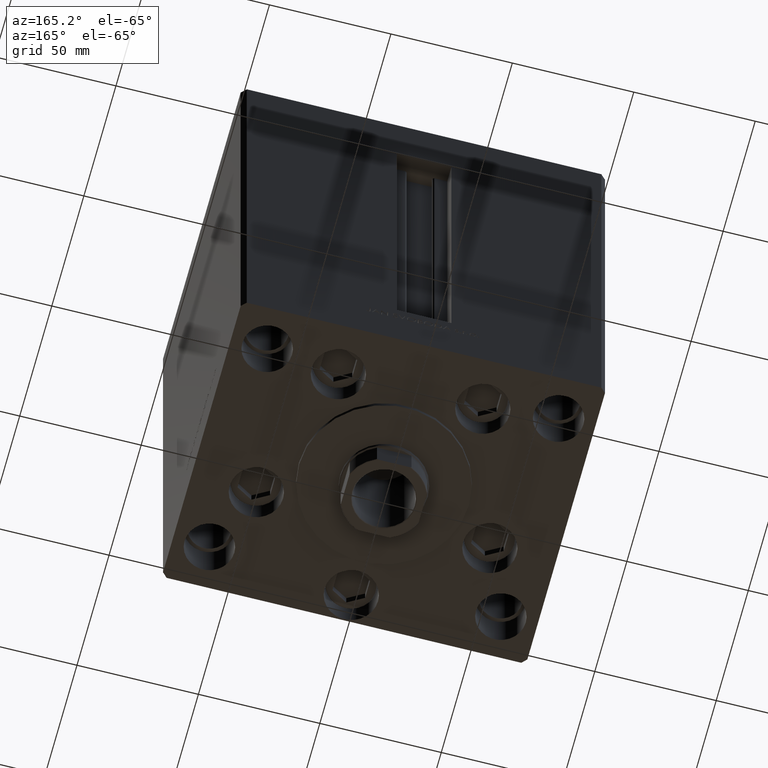
[diagram: clean part render]
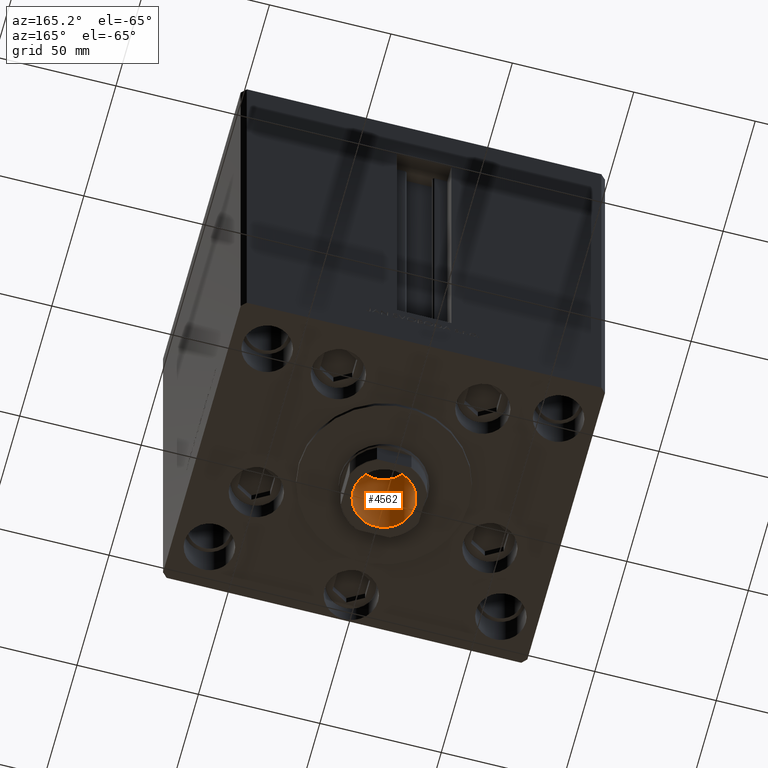
[diagram: same view with one face highlighted and labeled with its STEP entity id]
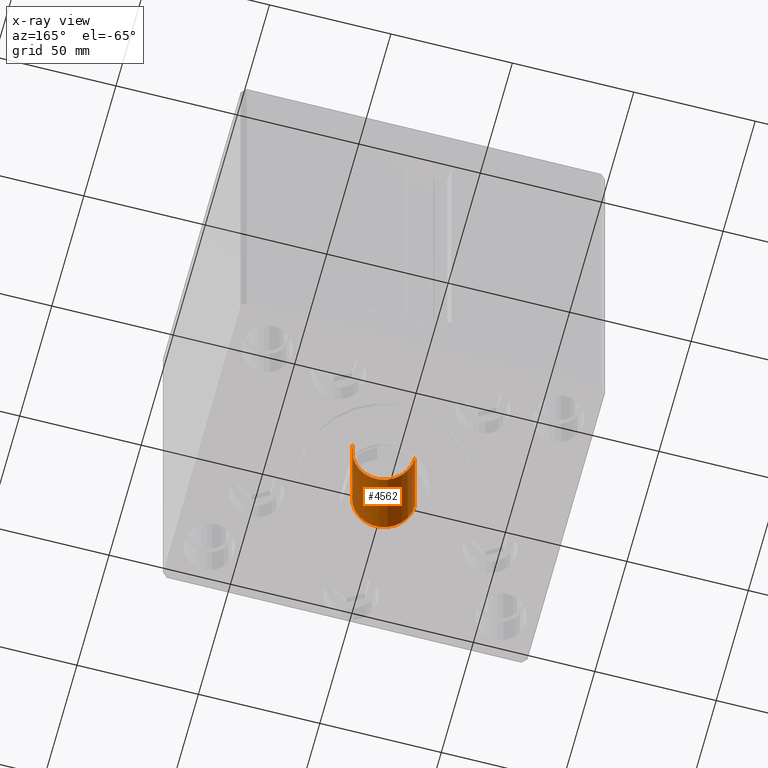
[diagram: x-ray of the same camera — body ghosted, the highlighted face saturated]
A machine part, auxiliary view. The second image highlights one B-rep face of the part: STEP entity #4562.
The next image is the same camera in x-ray: the body ghosted, the highlighted face saturated — about 8% of this face is hidden behind the body in this view.
In plain terms, the highlighted cylindrical surface (edge-blend (fillet) strip) has radius 12.75 mm, axis along (0, 0, -1).
Its self-contained STEP definition (entity closure, byte-faithful):
#626 = ORIENTED_EDGE ( 'NONE', *, *, #39612, .F. ) ;
#2459 = CARTESIAN_POINT ( 'NONE',  ( -12.74999999999999467, 1.561424668912874519E-15, 182.2000000000000171 ) ) ;
#2632 = ORIENTED_EDGE ( 'NONE', *, *, #12666, .F. ) ;
#3255 = CARTESIAN_POINT ( 'NONE',  ( 0.000000000000000000, 0.000000000000000000, 182.2000000000000171 ) ) ;
#3338 = VERTEX_POINT ( 'NONE', #2459 ) ;
#4562 = ADVANCED_FACE ( 'NONE', ( #23774 ), #38885, .F. ) ;
#5219 = DIRECTION ( 'NONE',  ( -0.000000000000000000, -0.000000000000000000, 1.000000000000000000 ) ) ;
#6328 = EDGE_CURVE ( 'NONE', #3338, #7794, #26481, .T. ) ;
#7794 = VERTEX_POINT ( 'NONE', #21059 ) ;
#8501 = CARTESIAN_POINT ( 'NONE',  ( 0.000000000000000000, 0.000000000000000000, 137.5000000000000000 ) ) ;
#11724 = DIRECTION ( 'NONE',  ( -0.000000000000000000, -0.000000000000000000, 1.000000000000000000 ) ) ;
#12666 = EDGE_CURVE ( 'NONE', #14321, #7794, #30289, .T. ) ;
#14321 = VERTEX_POINT ( 'NONE', #33147 ) ;
#14634 = DIRECTION ( 'NONE',  ( 1.000000000000000000, 0.000000000000000000, 0.000000000000000000 ) ) ;
#15042 = VECTOR ( 'NONE', #29561, 1000.000000000000000 ) ;
#18358 = DIRECTION ( 'NONE',  ( 0.000000000000000000, 0.000000000000000000, 1.000000000000000000 ) ) ;
#18373 = CARTESIAN_POINT ( 'NONE',  ( -12.74999999999999112, 1.561424668912874125E-15, 137.5000000000000000 ) ) ;
#19911 = EDGE_LOOP ( 'NONE', ( #626, #31624, #19929, #2632 ) ) ;
#19929 = ORIENTED_EDGE ( 'NONE', *, *, #6328, .T. ) ;
#20052 = EDGE_CURVE ( 'NONE', #34714, #3338, #48357, .T. ) ;
#21059 = CARTESIAN_POINT ( 'NONE',  ( 12.74999999999999467, 0.000000000000000000, 182.2000000000000171 ) ) ;
#23601 = DIRECTION ( 'NONE',  ( 1.000000000000000000, 0.000000000000000000, 0.000000000000000000 ) ) ;
#23774 = FACE_OUTER_BOUND ( 'NONE', #19911, .T. ) ;
#24054 = AXIS2_PLACEMENT_3D ( 'NONE', #39141, #5219, #32357 ) ;
#25857 = CARTESIAN_POINT ( 'NONE',  ( -12.74999999999999467, 1.561424668912874519E-15, 182.5000000000000284 ) ) ;
#26481 = CIRCLE ( 'NONE', #35961, 12.74999999999999467 ) ;
#28245 = VECTOR ( 'NONE', #46609, 1000.000000000000000 ) ;
#29561 = DIRECTION ( 'NONE',  ( -0.000000000000000000, -0.000000000000000000, 1.000000000000000000 ) ) ;
#30289 = LINE ( 'NONE', #45390, #28245 ) ;
#30564 = CIRCLE ( 'NONE', #36120, 12.74999999999999112 ) ;
#31624 = ORIENTED_EDGE ( 'NONE', *, *, #20052, .T. ) ;
#32357 = DIRECTION ( 'NONE',  ( 1.000000000000000000, 0.000000000000000000, 0.000000000000000000 ) ) ;
#33147 = CARTESIAN_POINT ( 'NONE',  ( 12.74999999999999112, 0.000000000000000000, 137.5000000000000000 ) ) ;
#34714 = VERTEX_POINT ( 'NONE', #18373 ) ;
#35961 = AXIS2_PLACEMENT_3D ( 'NONE', #3255, #18358, #14634 ) ;
#36120 = AXIS2_PLACEMENT_3D ( 'NONE', #8501, #11724, #23601 ) ;
#38885 = CYLINDRICAL_SURFACE ( 'NONE', #24054, 12.74999999999999467 ) ;
#39141 = CARTESIAN_POINT ( 'NONE',  ( 0.000000000000000000, 0.000000000000000000, 182.5000000000000284 ) ) ;
#39612 = EDGE_CURVE ( 'NONE', #34714, #14321, #30564, .T. ) ;
#45390 = CARTESIAN_POINT ( 'NONE',  ( 12.74999999999999467, 0.000000000000000000, 182.5000000000000284 ) ) ;
#46609 = DIRECTION ( 'NONE',  ( -0.000000000000000000, -0.000000000000000000, 1.000000000000000000 ) ) ;
#48357 = LINE ( 'NONE', #25857, #15042 ) ;